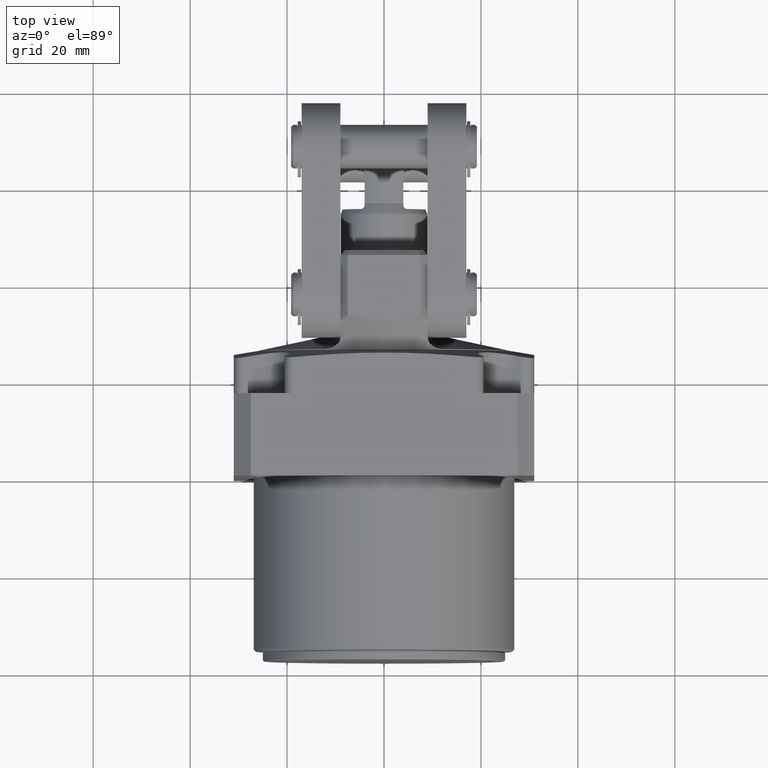
[diagram: clean part render]
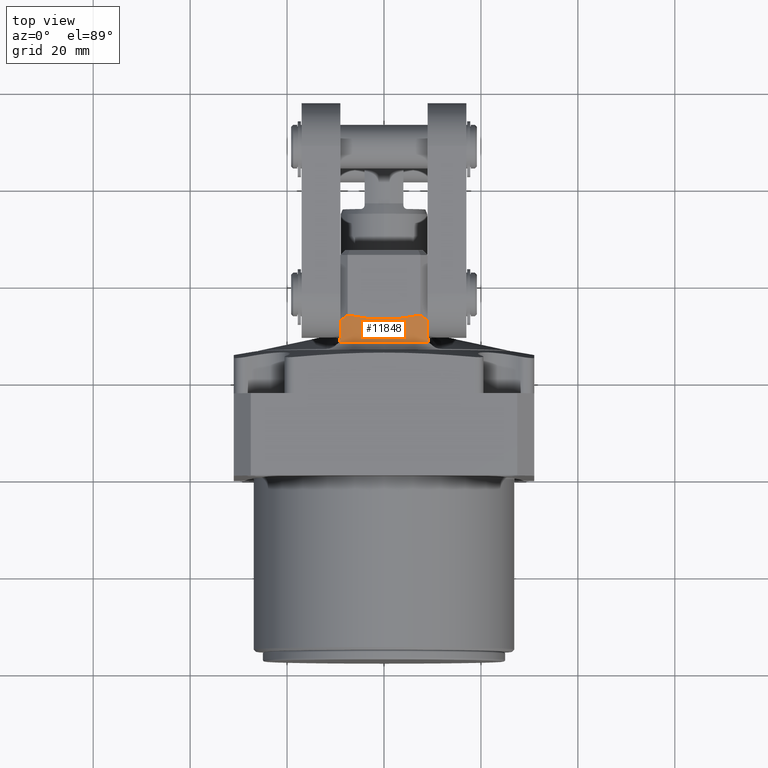
[diagram: same view with one face highlighted and labeled with its STEP entity id]
A machine part, top view. The second image highlights one B-rep face of the part: STEP entity #11848.
In plain terms, the highlighted conical surface has half-angle 45 deg.
Its self-contained STEP definition (entity closure, byte-faithful):
#6436=CARTESIAN_POINT('',(9.029239162124E0,1.201245866673E1,2.579658818901E1));
#6437=CARTESIAN_POINT('',(9.019596703131E0,1.207165594689E1,2.586268193397E1));
#6438=CARTESIAN_POINT('',(9.004994492642E0,1.219123848247E1,2.599437834902E1));
#6439=CARTESIAN_POINT('',(9.000000001484E0,1.231321484852E1,2.612512281113E1));
#6440=CARTESIAN_POINT('',(8.999999997677E0,1.237480853569E1,2.619025177960E1));
#6508=CARTESIAN_POINT('',(8.999999997677E0,1.237480853569E1,2.619025177960E1));
#6509=CARTESIAN_POINT('',(8.999999997677E0,1.270896880759E1,2.654359177884E1));
#6510=CARTESIAN_POINT('',(9.000000001084E0,1.338778271636E1,2.725985685442E1));
#6511=CARTESIAN_POINT('',(8.999999999690E0,1.443726273475E1,2.836290140903E1));
#6512=CARTESIAN_POINT('',(9.E0,1.515803308643E1,2.911773450117E1));
#6513=CARTESIAN_POINT('',(9.E0,1.552366137014E1,2.95E1));
#6614=CARTESIAN_POINT('',(-9.029239162428E0,1.201245866406E1,2.579658818608E1));
#6615=CARTESIAN_POINT('',(-9.038122448670E0,1.193449987691E1,2.571088259993E1));
#6616=CARTESIAN_POINT('',(-9.060625670409E0,1.177975057085E1,2.553889718400E1));
#6617=CARTESIAN_POINT('',(-9.111920030004E0,1.155151876789E1,2.527820433256E1));
#6618=CARTESIAN_POINT('',(-9.184479850594E0,1.132961924580E1,2.501572864913E1));
#6619=CARTESIAN_POINT('',(-9.249343324444E0,1.118889573896E1,2.484160863245E1));
#6620=CARTESIAN_POINT('',(-9.286900032853E0,1.112066017178E1,2.475463953145E1));
#6625=CARTESIAN_POINT('',(-7.5E0,1.657567721119E1,3.1E1));
#6626=CARTESIAN_POINT('',(-7.755332183217E0,1.638754655440E1,3.074466781678E1));
#6627=CARTESIAN_POINT('',(-8.260686012564E0,1.602413689192E1,3.023931398744E1));
#6628=CARTESIAN_POINT('',(-8.755355455751E0,1.568626942745E1,2.974464454425E1));
#6629=CARTESIAN_POINT('',(-9.E0,1.552366137014E1,2.95E1));
#6634=CARTESIAN_POINT('',(-7.5E0,1.657567721119E1,3.1E1));
#6635=CARTESIAN_POINT('',(-6.652955802046E0,1.637649365308E1,3.1E1));
#6636=CARTESIAN_POINT('',(-4.968425330090E0,1.604439878641E1,3.1E1));
#6637=CARTESIAN_POINT('',(-2.479277360851E0,1.574749552882E1,3.1E1));
#6638=CARTESIAN_POINT('',(7.606056237619E-6,1.564823272148E1,3.1E1));
#6639=CARTESIAN_POINT('',(2.479272873054E0,1.574749564663E1,3.1E1));
#6640=CARTESIAN_POINT('',(4.968418076784E0,1.604439751806E1,3.1E1));
#6641=CARTESIAN_POINT('',(6.652952220704E0,1.637649281092E1,3.1E1));
#6642=CARTESIAN_POINT('',(7.5E0,1.657567721119E1,3.1E1));
#6647=CARTESIAN_POINT('',(9.E0,1.552366137014E1,2.95E1));
#6648=CARTESIAN_POINT('',(8.755674371580E0,1.568605745344E1,2.974432562842E1));
#6649=CARTESIAN_POINT('',(8.261317612266E0,1.602369370643E1,3.023868238773E1));
#6650=CARTESIAN_POINT('',(7.755644702893E0,1.638731628757E1,3.074435529711E1));
#6651=CARTESIAN_POINT('',(7.5E0,1.657567721119E1,3.1E1));
#6656=CARTESIAN_POINT('',(9.286900032853E0,1.112066017178E1,2.475463953145E1));
#6657=CARTESIAN_POINT('',(9.242212949234E0,1.120185068675E1,2.485812025841E1));
#6658=CARTESIAN_POINT('',(9.171290757115E0,1.136293910281E1,2.505606410734E1));
#6659=CARTESIAN_POINT('',(9.102657005912E0,1.158781543396E1,2.532009715329E1));
#6660=CARTESIAN_POINT('',(9.057047669218E0,1.180237062882E1,2.556414699639E1));
#6661=CARTESIAN_POINT('',(9.037128685499E0,1.194322103770E1,2.572047038633E1));
#6662=CARTESIAN_POINT('',(9.029239162124E0,1.201245866673E1,2.579658818901E1));
#6667=CARTESIAN_POINT('',(0.E0,1.112066017178E1,0.E0));
#6668=DIRECTION('',(0.E0,-1.E0,0.E0));
#6669=DIRECTION('',(3.512530983448E-1,0.E0,9.362805460455E-1));
#6670=AXIS2_PLACEMENT_3D('',#6667,#6668,#6669);
#6747=CARTESIAN_POINT('',(-8.999999997354E0,1.237480853586E1,2.619025177985E1));
#6748=CARTESIAN_POINT('',(-9.000000001562E0,1.231206691464E1,2.612390898946E1));
#6749=CARTESIAN_POINT('',(-9.005180891490E0,1.218897291912E1,2.599191642635E1));
#6750=CARTESIAN_POINT('',(-9.019776996291E0,1.207054908557E1,2.586144612366E1));
#6751=CARTESIAN_POINT('',(-9.029239162428E0,1.201245866406E1,2.579658818608E1));
#6765=CARTESIAN_POINT('',(-9.286900032853E0,1.112066017178E1,2.475463953145E1));
#6779=CARTESIAN_POINT('',(9.286900032853E0,1.112066017178E1,2.475463953145E1));
#6940=CARTESIAN_POINT('',(-9.E0,1.552366137014E1,2.95E1));
#6941=CARTESIAN_POINT('',(-9.E0,1.515803592574E1,2.911773746969E1));
#6942=CARTESIAN_POINT('',(-8.999999999647E0,1.443726936071E1,2.836290835557E1));
#6943=CARTESIAN_POINT('',(-9.000000001235E0,1.338779021079E1,2.725986474951E1));
#6944=CARTESIAN_POINT('',(-8.999999997354E0,1.270897201778E1,2.654359517336E1));
#6945=CARTESIAN_POINT('',(-8.999999997354E0,1.237480853586E1,2.619025177985E1));
#10793=VERTEX_POINT('',#6647);
#10794=VERTEX_POINT('',#6651);
#10795=VERTEX_POINT('',#6625);
#10796=VERTEX_POINT('',#6629);
#10822=VERTEX_POINT('',#6508);
#10823=VERTEX_POINT('',#6945);
#10849=VERTEX_POINT('',#6779);
#10850=VERTEX_POINT('',#6662);
#10865=VERTEX_POINT('',#6765);
#10867=VERTEX_POINT('',#6614);
#11825=CARTESIAN_POINT('',(0.E0,1.384816869149E1,0.E0));
#11826=DIRECTION('',(0.E0,1.E0,0.E0));
#11827=DIRECTION('',(0.E0,0.E0,-1.E0));
#11828=AXIS2_PLACEMENT_3D('',#11825,#11826,#11827);
#11829=CONICAL_SURFACE('',#11828,2.916684834793E1,4.5E1);
#11831=ORIENTED_EDGE('',*,*,#11830,.F.);
#11833=ORIENTED_EDGE('',*,*,#11832,.F.);
#11835=ORIENTED_EDGE('',*,*,#11834,.F.);
#11837=ORIENTED_EDGE('',*,*,#11836,.F.);
#11839=ORIENTED_EDGE('',*,*,#11838,.T.);
#11840=ORIENTED_EDGE('',*,*,#11817,.F.);
#11841=ORIENTED_EDGE('',*,*,#11726,.F.);
#11842=ORIENTED_EDGE('',*,*,#11678,.F.);
#11843=ORIENTED_EDGE('',*,*,#11708,.F.);
#11845=ORIENTED_EDGE('',*,*,#11844,.T.);
#11846=EDGE_LOOP('',(#11831,#11833,#11835,#11837,#11839,#11840,#11841,#11842,
#11843,#11845));
#11847=FACE_OUTER_BOUND('',#11846,.F.);
#11848=ADVANCED_FACE('',(#11847),#11829,.T.);
#6441=B_SPLINE_CURVE_WITH_KNOTS('',3,(#6436,#6437,#6438,#6439,#6440),
.UNSPECIFIED.,.F.,.F.,(4,1,4),(0.E0,5.E-1,1.E0),.UNSPECIFIED.);
#6514=B_SPLINE_CURVE_WITH_KNOTS('',3,(#6508,#6509,#6510,#6511,#6512,#6513),
.UNSPECIFIED.,.F.,.F.,(4,1,1,4),(0.E0,3.333333333333E-1,6.666666666667E-1,1.E0),
.UNSPECIFIED.);
#6621=B_SPLINE_CURVE_WITH_KNOTS('',3,(#6614,#6615,#6616,#6617,#6618,#6619,
#6620),.UNSPECIFIED.,.F.,.F.,(4,1,1,1,4),(0.E0,2.5E-1,5.E-1,7.5E-1,1.E0),
.UNSPECIFIED.);
#6630=B_SPLINE_CURVE_WITH_KNOTS('',3,(#6625,#6626,#6627,#6628,#6629),
.UNSPECIFIED.,.F.,.F.,(4,1,4),(0.E0,5.E-1,1.E0),.UNSPECIFIED.);
#6643=B_SPLINE_CURVE_WITH_KNOTS('',3,(#6634,#6635,#6636,#6637,#6638,#6639,#6640,
#6641,#6642),.UNSPECIFIED.,.F.,.F.,(4,1,1,1,1,1,4),(0.E0,1.666666666667E-1,
3.333333333333E-1,5.E-1,6.666666666667E-1,8.333333333333E-1,1.E0),
.UNSPECIFIED.);
#6652=B_SPLINE_CURVE_WITH_KNOTS('',3,(#6647,#6648,#6649,#6650,#6651),
.UNSPECIFIED.,.F.,.F.,(4,1,4),(0.E0,5.E-1,1.E0),.UNSPECIFIED.);
#6663=B_SPLINE_CURVE_WITH_KNOTS('',3,(#6656,#6657,#6658,#6659,#6660,#6661,
#6662),.UNSPECIFIED.,.F.,.F.,(4,1,1,1,4),(0.E0,2.5E-1,5.E-1,7.5E-1,1.E0),
.UNSPECIFIED.);
#6671=CIRCLE('',#6670,2.643933982822E1);
#6752=B_SPLINE_CURVE_WITH_KNOTS('',3,(#6747,#6748,#6749,#6750,#6751),
.UNSPECIFIED.,.F.,.F.,(4,1,4),(0.E0,5.E-1,1.E0),.UNSPECIFIED.);
#6946=B_SPLINE_CURVE_WITH_KNOTS('',3,(#6940,#6941,#6942,#6943,#6944,#6945),
.UNSPECIFIED.,.F.,.F.,(4,1,1,4),(0.E0,3.333333333333E-1,6.666666666667E-1,1.E0),
.UNSPECIFIED.);
#11678=EDGE_CURVE('',#10850,#10822,#6441,.T.);
#11708=EDGE_CURVE('',#10849,#10850,#6663,.T.);
#11726=EDGE_CURVE('',#10822,#10793,#6514,.T.);
#11817=EDGE_CURVE('',#10793,#10794,#6652,.T.);
#11830=EDGE_CURVE('',#10867,#10865,#6621,.T.);
#11832=EDGE_CURVE('',#10823,#10867,#6752,.T.);
#11834=EDGE_CURVE('',#10796,#10823,#6946,.T.);
#11836=EDGE_CURVE('',#10795,#10796,#6630,.T.);
#11838=EDGE_CURVE('',#10795,#10794,#6643,.T.);
#11844=EDGE_CURVE('',#10849,#10865,#6671,.T.);